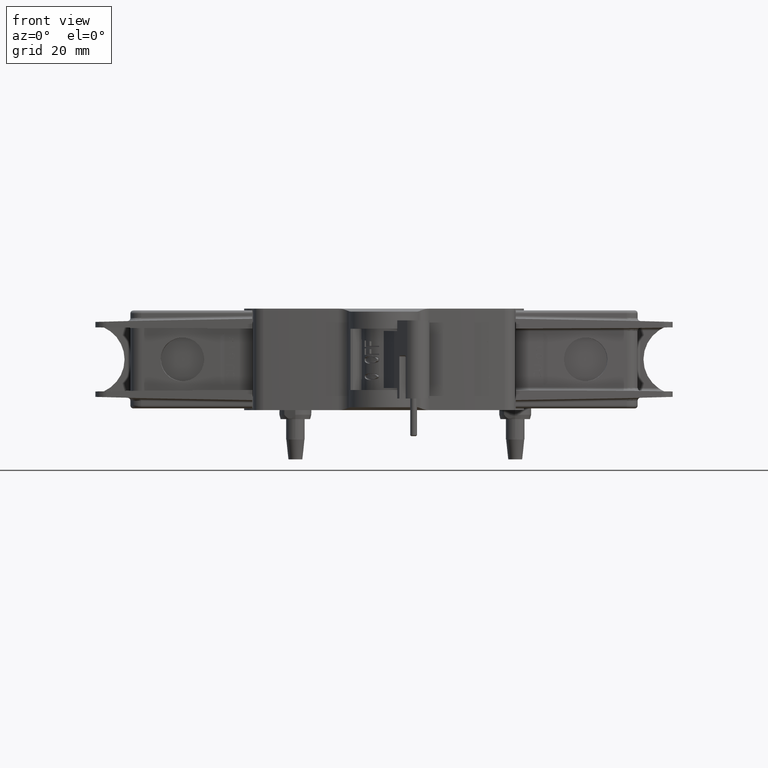
[diagram: clean part render]
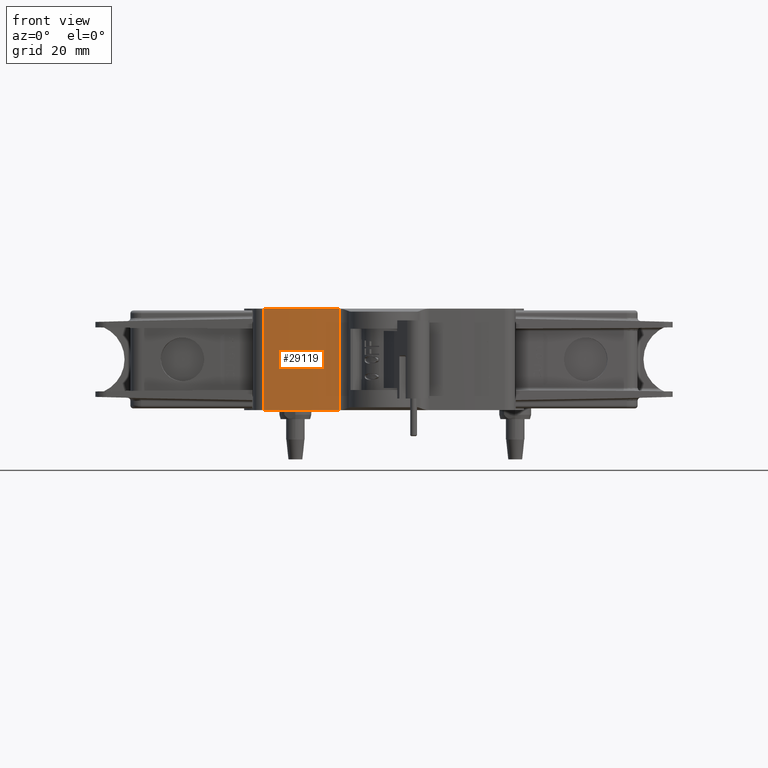
[diagram: same view with one face highlighted and labeled with its STEP entity id]
A machine part, front view. The second image highlights one B-rep face of the part: STEP entity #29119.
In plain terms, the highlighted cylindrical surface (partial cylindrical patch) has radius 200 mm, axis along (0, 0, -1).
Its self-contained STEP definition (entity closure, byte-faithful):
#661=DIRECTION('',(6.786150390885E-9,-2.821083341744E-10,1.E0));
#662=VECTOR('',#661,1.739999999781E1);
#663=CARTESIAN_POINT('',(-7.735144639802E0,-5.785036286497E1,
-8.699999997911E0));
#664=LINE('',#663,#662);
#703=CARTESIAN_POINT('',(0.E0,1.42E2,8.7E0));
#704=DIRECTION('',(0.E0,0.E0,-1.E0));
#705=DIRECTION('',(-3.867572261636E-2,-9.992518143492E-1,0.E0));
#706=AXIS2_PLACEMENT_3D('',#703,#704,#705);
#708=CARTESIAN_POINT('',(0.E0,1.42E2,-8.7E0));
#709=DIRECTION('',(0.E0,0.E0,-1.E0));
#710=DIRECTION('',(-3.867572344784E-2,-9.992518143170E-1,0.E0));
#711=AXIS2_PLACEMENT_3D('',#708,#709,#710);
#722=DIRECTION('',(0.E0,0.E0,-1.E0));
#723=VECTOR('',#722,1.74E1);
#724=CARTESIAN_POINT('',(-2.070707070707E1,-5.692515482646E1,8.7E0));
#725=LINE('',#724,#723);
#22886=CARTESIAN_POINT('',(-2.070707070707E1,-5.692515482646E1,-8.7E0));
#22888=VERTEX_POINT('',#22886);
#23107=CARTESIAN_POINT('',(-7.735144689567E0,-5.785036286340E1,-8.7E0));
#23108=VERTEX_POINT('',#23107);
#24455=CARTESIAN_POINT('',(-2.070707070707E1,-5.692515482646E1,8.7E0));
#24457=VERTEX_POINT('',#24455);
#24477=CARTESIAN_POINT('',(-7.735144523271E0,-5.785036286983E1,8.7E0));
#24478=VERTEX_POINT('',#24477);
#29105=CARTESIAN_POINT('',(0.E0,1.42E2,-1.738998454789E-14));
#29106=DIRECTION('',(0.E0,0.E0,-1.E0));
#29107=DIRECTION('',(1.E0,0.E0,0.E0));
#29108=AXIS2_PLACEMENT_3D('',#29105,#29106,#29107);
#29109=CYLINDRICAL_SURFACE('',#29108,2.E2);
#29111=ORIENTED_EDGE('',*,*,#29110,.F.);
#29113=ORIENTED_EDGE('',*,*,#29112,.F.);
#29114=ORIENTED_EDGE('',*,*,#29095,.F.);
#29116=ORIENTED_EDGE('',*,*,#29115,.T.);
#29117=EDGE_LOOP('',(#29111,#29113,#29114,#29116));
#29118=FACE_OUTER_BOUND('',#29117,.F.);
#707=CIRCLE('',#706,2.E2);
#712=CIRCLE('',#711,2.E2);
#29095=EDGE_CURVE('',#23108,#24478,#664,.T.);
#29110=EDGE_CURVE('',#24457,#22888,#725,.T.);
#29112=EDGE_CURVE('',#24478,#24457,#707,.T.);
#29115=EDGE_CURVE('',#23108,#22888,#712,.T.);
#29119=ADVANCED_FACE('',(#29118),#29109,.T.);